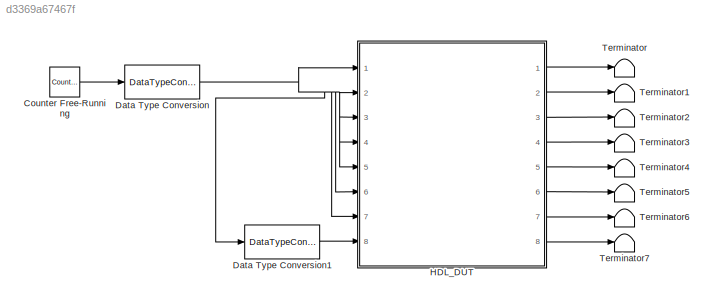
MODEL slx_d3369a67467f
KIND model
CONFIG AbsTol = auto
CONFIG EnableMultiTasking = off
CONFIG FixedStep = auto
CONFIG MaxStep = auto
CONFIG MinStep = auto
CONFIG RelTol = 1e-3
CONFIG SampleTimeConstraint = Unconstrained
CONFIG Solver = FixedStepDiscrete
CONFIG SolverName = FixedStepDiscrete
CONFIG StartTime = 0.0
CONFIG StopTime = 10.0
BLOCK [Reference] Counter Free-Running  REF=simulink/Sources/Counter
Free-Running
  Ports = [0, 1]
  SourceBlock = simulink/Sources/Counter\nFree-Running
  SourceProductBaseCode = SL
  SourceProductName = Simulink
  SourceType = Counter Free-Running
BLOCK [DataTypeConversion] Data Type Conversion
  OutDataTypeStr = int64
  RndMeth = Floor
  SaturateOnIntegerOverflow = off
BLOCK [DataTypeConversion] Data Type Conversion1
  OutDataTypeStr = boolean
  RndMeth = Floor
  SaturateOnIntegerOverflow = off
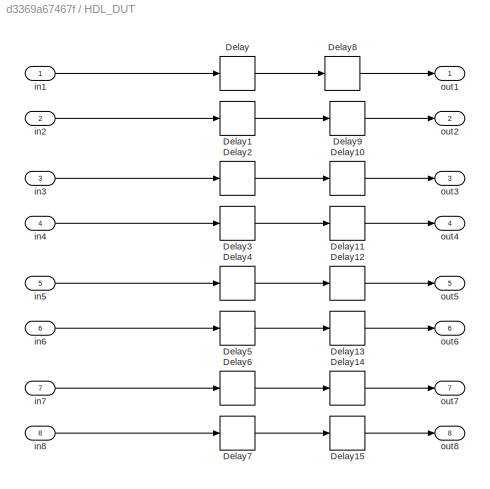
BLOCK [SubSystem] HDL_DUT
  Ports = [8, 8]
  RequestExecContextInheritance = off
  TreatAsAtomicUnit = on
BLOCK [Delay] HDL_DUT/Delay
  InputPortMap = u0
  Ports = [1, 1]
BLOCK [Delay] HDL_DUT/Delay1
  InputPortMap = u0
  Ports = [1, 1]
BLOCK [Delay] HDL_DUT/Delay10
  InputPortMap = u0
  Ports = [1, 1]
BLOCK [Delay] HDL_DUT/Delay11
  InputPortMap = u0
  Ports = [1, 1]
BLOCK [Delay] HDL_DUT/Delay12
  InputPortMap = u0
  Ports = [1, 1]
BLOCK [Delay] HDL_DUT/Delay13
  InputPortMap = u0
  Ports = [1, 1]
BLOCK [Delay] HDL_DUT/Delay14
  InputPortMap = u0
  Ports = [1, 1]
BLOCK [Delay] HDL_DUT/Delay15
  InputPortMap = u0
  Ports = [1, 1]
BLOCK [Delay] HDL_DUT/Delay2
  InputPortMap = u0
  Ports = [1, 1]
BLOCK [Delay] HDL_DUT/Delay3
  InputPortMap = u0
  Ports = [1, 1]
BLOCK [Delay] HDL_DUT/Delay4
  InputPortMap = u0
  Ports = [1, 1]
BLOCK [Delay] HDL_DUT/Delay5
  InputPortMap = u0
  Ports = [1, 1]
BLOCK [Delay] HDL_DUT/Delay6
  InputPortMap = u0
  Ports = [1, 1]
BLOCK [Delay] HDL_DUT/Delay7
  InputPortMap = u0
  Ports = [1, 1]
BLOCK [Delay] HDL_DUT/Delay8
  InputPortMap = u0
  Ports = [1, 1]
BLOCK [Delay] HDL_DUT/Delay9
  InputPortMap = u0
  Ports = [1, 1]
BLOCK [Inport] HDL_DUT/in1
  IconDisplay = Port number
BLOCK [Inport] HDL_DUT/in2
  IconDisplay = Port number
  Port = 2
BLOCK [Inport] HDL_DUT/in3
  IconDisplay = Port number
  Port = 3
BLOCK [Inport] HDL_DUT/in4
  IconDisplay = Port number
  Port = 4
BLOCK [Inport] HDL_DUT/in5
  IconDisplay = Port number
  Port = 5
BLOCK [Inport] HDL_DUT/in6
  IconDisplay = Port number
  Port = 6
BLOCK [Inport] HDL_DUT/in7
  IconDisplay = Port number
  Port = 7
BLOCK [Inport] HDL_DUT/in8
  IconDisplay = Port number
  Port = 8
BLOCK [Outport] HDL_DUT/out1
  IconDisplay = Port number
BLOCK [Outport] HDL_DUT/out2
  IconDisplay = Port number
  Port = 2
BLOCK [Outport] HDL_DUT/out3
  IconDisplay = Port number
  Port = 3
BLOCK [Outport] HDL_DUT/out4
  IconDisplay = Port number
  Port = 4
BLOCK [Outport] HDL_DUT/out5
  IconDisplay = Port number
  Port = 5
BLOCK [Outport] HDL_DUT/out6
  IconDisplay = Port number
  Port = 6
BLOCK [Outport] HDL_DUT/out7
  IconDisplay = Port number
  Port = 7
BLOCK [Outport] HDL_DUT/out8
  IconDisplay = Port number
  Port = 8
BLOCK [Terminator] Terminator
BLOCK [Terminator] Terminator1
BLOCK [Terminator] Terminator2
BLOCK [Terminator] Terminator3
BLOCK [Terminator] Terminator4
BLOCK [Terminator] Terminator5
BLOCK [Terminator] Terminator6
BLOCK [Terminator] Terminator7
LINE Counter Free-Running:1 -> Data Type Conversion:1
LINE Data Type Conversion1:1 -> HDL_DUT:8
NET Data Type Conversion:1 -> Data Type Conversion1:1, HDL_DUT:1, HDL_DUT:2, HDL_DUT:3, HDL_DUT:4, HDL_DUT:5, HDL_DUT:6, HDL_DUT:7
LINE HDL_DUT/Delay10:1 -> HDL_DUT/out3:1
LINE HDL_DUT/Delay11:1 -> HDL_DUT/out4:1
LINE HDL_DUT/Delay12:1 -> HDL_DUT/out5:1
LINE HDL_DUT/Delay13:1 -> HDL_DUT/out6:1
LINE HDL_DUT/Delay14:1 -> HDL_DUT/out7:1
LINE HDL_DUT/Delay15:1 -> HDL_DUT/out8:1
LINE HDL_DUT/Delay1:1 -> HDL_DUT/Delay9:1
LINE HDL_DUT/Delay2:1 -> HDL_DUT/Delay10:1
LINE HDL_DUT/Delay3:1 -> HDL_DUT/Delay11:1
LINE HDL_DUT/Delay4:1 -> HDL_DUT/Delay12:1
LINE HDL_DUT/Delay5:1 -> HDL_DUT/Delay13:1
LINE HDL_DUT/Delay6:1 -> HDL_DUT/Delay14:1
LINE HDL_DUT/Delay7:1 -> HDL_DUT/Delay15:1
LINE HDL_DUT/Delay8:1 -> HDL_DUT/out1:1
LINE HDL_DUT/Delay9:1 -> HDL_DUT/out2:1
LINE HDL_DUT/Delay:1 -> HDL_DUT/Delay8:1
LINE HDL_DUT/in1:1 -> HDL_DUT/Delay:1
LINE HDL_DUT/in2:1 -> HDL_DUT/Delay1:1
LINE HDL_DUT/in3:1 -> HDL_DUT/Delay2:1
LINE HDL_DUT/in4:1 -> HDL_DUT/Delay3:1
LINE HDL_DUT/in5:1 -> HDL_DUT/Delay4:1
LINE HDL_DUT/in6:1 -> HDL_DUT/Delay5:1
LINE HDL_DUT/in7:1 -> HDL_DUT/Delay6:1
LINE HDL_DUT/in8:1 -> HDL_DUT/Delay7:1
LINE HDL_DUT:1 -> Terminator:1
LINE HDL_DUT:2 -> Terminator1:1
LINE HDL_DUT:3 -> Terminator2:1
LINE HDL_DUT:4 -> Terminator3:1
LINE HDL_DUT:5 -> Terminator4:1
LINE HDL_DUT:6 -> Terminator5:1
LINE HDL_DUT:7 -> Terminator6:1
LINE HDL_DUT:8 -> Terminator7:1
note: NET lines group one-source signal fan-out (src -> all destinations, sorted); 1:1 wires keep LINE
